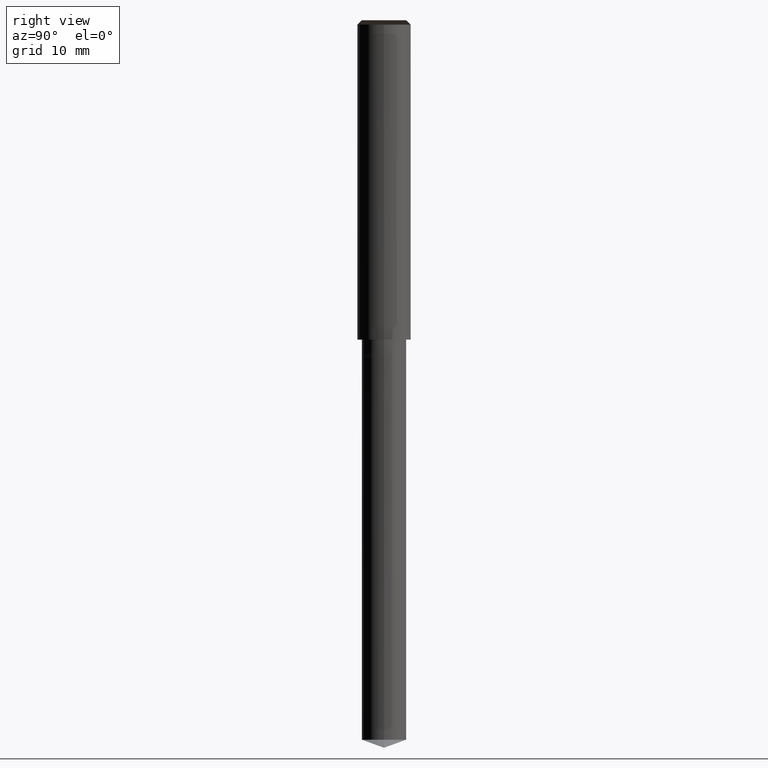
[diagram: clean part render]
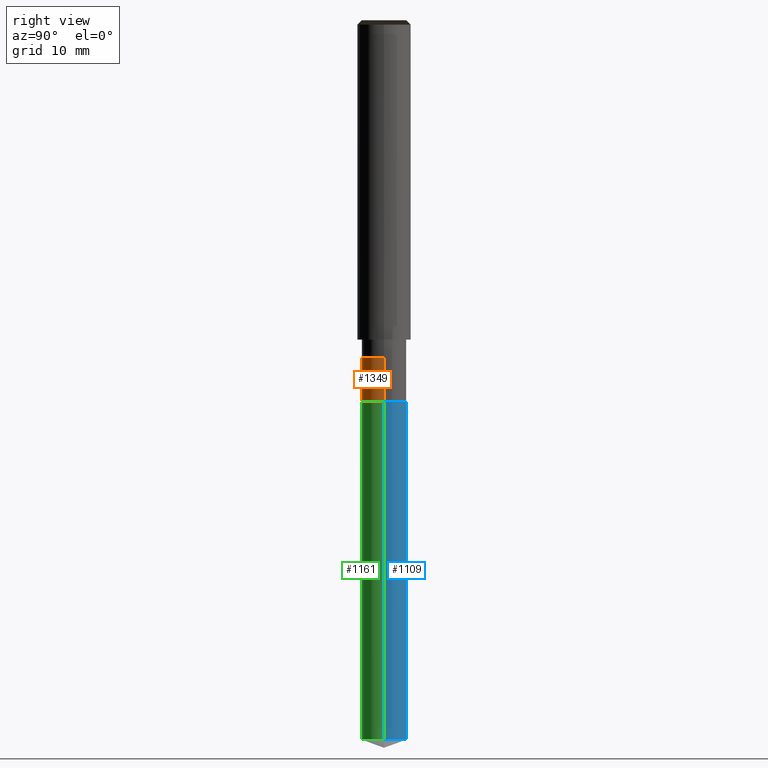
[diagram: same view with three faces highlighted in distinct colors, each labeled with its STEP entity id]
A machine part, right view with three faces highlighted in distinct colors.
Their STEP definitions:

[orange] entity #1349 — the highlighted face is a freeform B-spline surface patch.
#1016=CARTESIAN_POINT('',(2.5,0.0,-7.0));
#1020=CARTESIAN_POINT('',(-2.5,0.0,-7.0));
#1025=CARTESIAN_POINT('',(-2.5,-2.5,-7.0));
#1026=CARTESIAN_POINT('',(0.0,-2.5,-7.0));
#1027=CARTESIAN_POINT('',(2.5,-2.5,-7.0));
#1028=CARTESIAN_POINT('',(2.5,0.0,-2.0));
#1032=CARTESIAN_POINT('',(-2.5,0.0,-2.0));
#1054=CARTESIAN_POINT('',(-2.5,-2.5,-2.0));
#1055=CARTESIAN_POINT('',(0.0,-2.5,-2.0));
#1056=CARTESIAN_POINT('',(2.5,-2.5,-2.0));
#1330=(
BOUNDED_SURFACE()
B_SPLINE_SURFACE(1,2,(
(#1020,#1025,#1026,#1027,#1016),
(#1032,#1054,#1055,#1056,#1028)
), .UNSPECIFIED.,.F.,.F.,.F.)
B_SPLINE_SURFACE_WITH_KNOTS((2,2),(3,2,3),(
0.0,1.0),(
0.0,0.5,1.0), .UNSPECIFIED.)
GEOMETRIC_REPRESENTATION_ITEM()
RATIONAL_B_SPLINE_SURFACE(((1.0,0.707106781187,1.0,0.707106781187,1.0),
(1.0,0.707106781187,1.0,0.707106781187,1.0)
))
REPRESENTATION_ITEM('')
SURFACE()
);
#1331=(
BOUNDED_CURVE()
B_SPLINE_CURVE(2,(#1016,#1027,#1026,#1025,#1020),.UNSPECIFIED.,.F.,.F.)
B_SPLINE_CURVE_WITH_KNOTS((3,2,3),
(0.0,0.5,1.0),.UNSPECIFIED.)
CURVE()
GEOMETRIC_REPRESENTATION_ITEM()
RATIONAL_B_SPLINE_CURVE((1.0,0.707106781187,1.0,0.707106781187,1.0))
REPRESENTATION_ITEM('')
);
#1332=(
BOUNDED_CURVE()
B_SPLINE_CURVE(1,(#1020,#1032),.UNSPECIFIED.,.F.,.F.)
B_SPLINE_CURVE_WITH_KNOTS((2,2),
(0.0,1.0),.UNSPECIFIED.)
CURVE()
GEOMETRIC_REPRESENTATION_ITEM()
RATIONAL_B_SPLINE_CURVE((1.0,1.0))
REPRESENTATION_ITEM('')
);
#1333=(
BOUNDED_CURVE()
B_SPLINE_CURVE(2,(#1032,#1054,#1055,#1056,#1028),.UNSPECIFIED.,.F.,.F.)
B_SPLINE_CURVE_WITH_KNOTS((3,2,3),
(0.0,0.5,1.0),.UNSPECIFIED.)
CURVE()
GEOMETRIC_REPRESENTATION_ITEM()
RATIONAL_B_SPLINE_CURVE((1.0,0.707106781187,1.0,0.707106781187,1.0))
REPRESENTATION_ITEM('')
);
#1334=(
BOUNDED_CURVE()
B_SPLINE_CURVE(1,(#1028,#1016),.UNSPECIFIED.,.F.,.F.)
B_SPLINE_CURVE_WITH_KNOTS((2,2),
(0.0,1.0),.UNSPECIFIED.)
CURVE()
GEOMETRIC_REPRESENTATION_ITEM()
RATIONAL_B_SPLINE_CURVE((1.0,1.0))
REPRESENTATION_ITEM('')
);
#1335=VERTEX_POINT('',#1016);
#1336=VERTEX_POINT('',#1020);
#1337=VERTEX_POINT('',#1028);
#1338=VERTEX_POINT('',#1032);
#1339=EDGE_CURVE('',#1335,#1336,#1331,.T.);
#1340=EDGE_CURVE('',#1336,#1338,#1332,.T.);
#1341=EDGE_CURVE('',#1338,#1337,#1333,.T.);
#1342=EDGE_CURVE('',#1337,#1335,#1334,.T.);
#1343=ORIENTED_EDGE('',*,*,#1339,.T.);
#1344=ORIENTED_EDGE('',*,*,#1340,.T.);
#1345=ORIENTED_EDGE('',*,*,#1341,.T.);
#1346=ORIENTED_EDGE('',*,*,#1342,.T.);
#1347=EDGE_LOOP('',(#1343,#1344,#1345,#1346));
#1348=FACE_OUTER_BOUND('',#1347,.T.);
#1349=ADVANCED_FACE('',(#1348),#1330,.T.);

[blue] entity #1109 — the highlighted face is a freeform B-spline surface patch.
#1011=CARTESIAN_POINT('',(2.5,0.0,-45.090074414334));
#1012=CARTESIAN_POINT('',(2.5,2.5,-45.090074414334));
#1013=CARTESIAN_POINT('',(0.0,2.5,-45.090074414334));
#1014=CARTESIAN_POINT('',(-2.5,2.5,-45.090074414334));
#1015=CARTESIAN_POINT('',(-2.5,0.0,-45.090074414334));
#1016=CARTESIAN_POINT('',(2.5,0.0,-7.0));
#1017=CARTESIAN_POINT('',(2.5,2.5,-7.0));
#1018=CARTESIAN_POINT('',(0.0,2.5,-7.0));
#1019=CARTESIAN_POINT('',(-2.5,2.5,-7.0));
#1020=CARTESIAN_POINT('',(-2.5,0.0,-7.0));
#1090=(
BOUNDED_SURFACE()
B_SPLINE_SURFACE(1,2,(
(#1011,#1012,#1013,#1014,#1015),
(#1016,#1017,#1018,#1019,#1020)
), .UNSPECIFIED.,.F.,.F.,.F.)
B_SPLINE_SURFACE_WITH_KNOTS((2,2),(3,2,3),(
0.0,1.0),(
0.0,0.5,1.0), .UNSPECIFIED.)
GEOMETRIC_REPRESENTATION_ITEM()
RATIONAL_B_SPLINE_SURFACE(((1.0,0.707106781187,1.0,0.707106781187,1.0),
(1.0,0.707106781187,1.0,0.707106781187,1.0)
))
REPRESENTATION_ITEM('')
SURFACE()
);
#1091=(
BOUNDED_CURVE()
B_SPLINE_CURVE(2,(#1015,#1014,#1013,#1012,#1011),.UNSPECIFIED.,.F.,.F.)
B_SPLINE_CURVE_WITH_KNOTS((3,2,3),
(0.0,0.5,1.0),.UNSPECIFIED.)
CURVE()
GEOMETRIC_REPRESENTATION_ITEM()
RATIONAL_B_SPLINE_CURVE((1.0,0.707106781187,1.0,0.707106781187,1.0))
REPRESENTATION_ITEM('')
);
#1092=(
BOUNDED_CURVE()
B_SPLINE_CURVE(1,(#1011,#1016),.UNSPECIFIED.,.F.,.F.)
B_SPLINE_CURVE_WITH_KNOTS((2,2),
(0.0,1.0),.UNSPECIFIED.)
CURVE()
GEOMETRIC_REPRESENTATION_ITEM()
RATIONAL_B_SPLINE_CURVE((1.0,1.0))
REPRESENTATION_ITEM('')
);
#1093=(
BOUNDED_CURVE()
B_SPLINE_CURVE(2,(#1016,#1017,#1018,#1019,#1020),.UNSPECIFIED.,.F.,.F.)
B_SPLINE_CURVE_WITH_KNOTS((3,2,3),
(0.0,0.5,1.0),.UNSPECIFIED.)
CURVE()
GEOMETRIC_REPRESENTATION_ITEM()
RATIONAL_B_SPLINE_CURVE((1.0,0.707106781187,1.0,0.707106781187,1.0))
REPRESENTATION_ITEM('')
);
#1094=(
BOUNDED_CURVE()
B_SPLINE_CURVE(1,(#1020,#1015),.UNSPECIFIED.,.F.,.F.)
B_SPLINE_CURVE_WITH_KNOTS((2,2),
(0.0,1.0),.UNSPECIFIED.)
CURVE()
GEOMETRIC_REPRESENTATION_ITEM()
RATIONAL_B_SPLINE_CURVE((1.0,1.0))
REPRESENTATION_ITEM('')
);
#1095=VERTEX_POINT('',#1011);
#1096=VERTEX_POINT('',#1015);
#1097=VERTEX_POINT('',#1016);
#1098=VERTEX_POINT('',#1020);
#1099=EDGE_CURVE('',#1096,#1095,#1091,.T.);
#1100=EDGE_CURVE('',#1095,#1097,#1092,.T.);
#1101=EDGE_CURVE('',#1097,#1098,#1093,.T.);
#1102=EDGE_CURVE('',#1098,#1096,#1094,.T.);
#1103=ORIENTED_EDGE('',*,*,#1099,.T.);
#1104=ORIENTED_EDGE('',*,*,#1100,.T.);
#1105=ORIENTED_EDGE('',*,*,#1101,.T.);
#1106=ORIENTED_EDGE('',*,*,#1102,.T.);
#1107=EDGE_LOOP('',(#1103,#1104,#1105,#1106));
#1108=FACE_OUTER_BOUND('',#1107,.T.);
#1109=ADVANCED_FACE('',(#1108),#1090,.T.);

[green] entity #1161 — the highlighted face is a freeform B-spline surface patch.
#1011=CARTESIAN_POINT('',(2.5,0.0,-45.090074414334));
#1015=CARTESIAN_POINT('',(-2.5,0.0,-45.090074414334));
#1016=CARTESIAN_POINT('',(2.5,0.0,-7.0));
#1020=CARTESIAN_POINT('',(-2.5,0.0,-7.0));
#1022=CARTESIAN_POINT('',(-2.5,-2.5,-45.090074414334));
#1023=CARTESIAN_POINT('',(0.0,-2.5,-45.090074414334));
#1024=CARTESIAN_POINT('',(2.5,-2.5,-45.090074414334));
#1025=CARTESIAN_POINT('',(-2.5,-2.5,-7.0));
#1026=CARTESIAN_POINT('',(0.0,-2.5,-7.0));
#1027=CARTESIAN_POINT('',(2.5,-2.5,-7.0));
#1142=(
BOUNDED_SURFACE()
B_SPLINE_SURFACE(1,2,(
(#1015,#1022,#1023,#1024,#1011),
(#1020,#1025,#1026,#1027,#1016)
), .UNSPECIFIED.,.F.,.F.,.F.)
B_SPLINE_SURFACE_WITH_KNOTS((2,2),(3,2,3),(
0.0,1.0),(
0.0,0.5,1.0), .UNSPECIFIED.)
GEOMETRIC_REPRESENTATION_ITEM()
RATIONAL_B_SPLINE_SURFACE(((1.0,0.707106781187,1.0,0.707106781187,1.0),
(1.0,0.707106781187,1.0,0.707106781187,1.0)
))
REPRESENTATION_ITEM('')
SURFACE()
);
#1143=(
BOUNDED_CURVE()
B_SPLINE_CURVE(2,(#1011,#1024,#1023,#1022,#1015),.UNSPECIFIED.,.F.,.F.)
B_SPLINE_CURVE_WITH_KNOTS((3,2,3),
(0.0,0.5,1.0),.UNSPECIFIED.)
CURVE()
GEOMETRIC_REPRESENTATION_ITEM()
RATIONAL_B_SPLINE_CURVE((1.0,0.707106781187,1.0,0.707106781187,1.0))
REPRESENTATION_ITEM('')
);
#1144=(
BOUNDED_CURVE()
B_SPLINE_CURVE(1,(#1015,#1020),.UNSPECIFIED.,.F.,.F.)
B_SPLINE_CURVE_WITH_KNOTS((2,2),
(0.0,1.0),.UNSPECIFIED.)
CURVE()
GEOMETRIC_REPRESENTATION_ITEM()
RATIONAL_B_SPLINE_CURVE((1.0,1.0))
REPRESENTATION_ITEM('')
);
#1145=(
BOUNDED_CURVE()
B_SPLINE_CURVE(2,(#1020,#1025,#1026,#1027,#1016),.UNSPECIFIED.,.F.,.F.)
B_SPLINE_CURVE_WITH_KNOTS((3,2,3),
(0.0,0.5,1.0),.UNSPECIFIED.)
CURVE()
GEOMETRIC_REPRESENTATION_ITEM()
RATIONAL_B_SPLINE_CURVE((1.0,0.707106781187,1.0,0.707106781187,1.0))
REPRESENTATION_ITEM('')
);
#1146=(
BOUNDED_CURVE()
B_SPLINE_CURVE(1,(#1016,#1011),.UNSPECIFIED.,.F.,.F.)
B_SPLINE_CURVE_WITH_KNOTS((2,2),
(0.0,1.0),.UNSPECIFIED.)
CURVE()
GEOMETRIC_REPRESENTATION_ITEM()
RATIONAL_B_SPLINE_CURVE((1.0,1.0))
REPRESENTATION_ITEM('')
);
#1147=VERTEX_POINT('',#1011);
#1148=VERTEX_POINT('',#1015);
#1149=VERTEX_POINT('',#1016);
#1150=VERTEX_POINT('',#1020);
#1151=EDGE_CURVE('',#1147,#1148,#1143,.T.);
#1152=EDGE_CURVE('',#1148,#1150,#1144,.T.);
#1153=EDGE_CURVE('',#1150,#1149,#1145,.T.);
#1154=EDGE_CURVE('',#1149,#1147,#1146,.T.);
#1155=ORIENTED_EDGE('',*,*,#1151,.T.);
#1156=ORIENTED_EDGE('',*,*,#1152,.T.);
#1157=ORIENTED_EDGE('',*,*,#1153,.T.);
#1158=ORIENTED_EDGE('',*,*,#1154,.T.);
#1159=EDGE_LOOP('',(#1155,#1156,#1157,#1158));
#1160=FACE_OUTER_BOUND('',#1159,.T.);
#1161=ADVANCED_FACE('',(#1160),#1142,.T.);